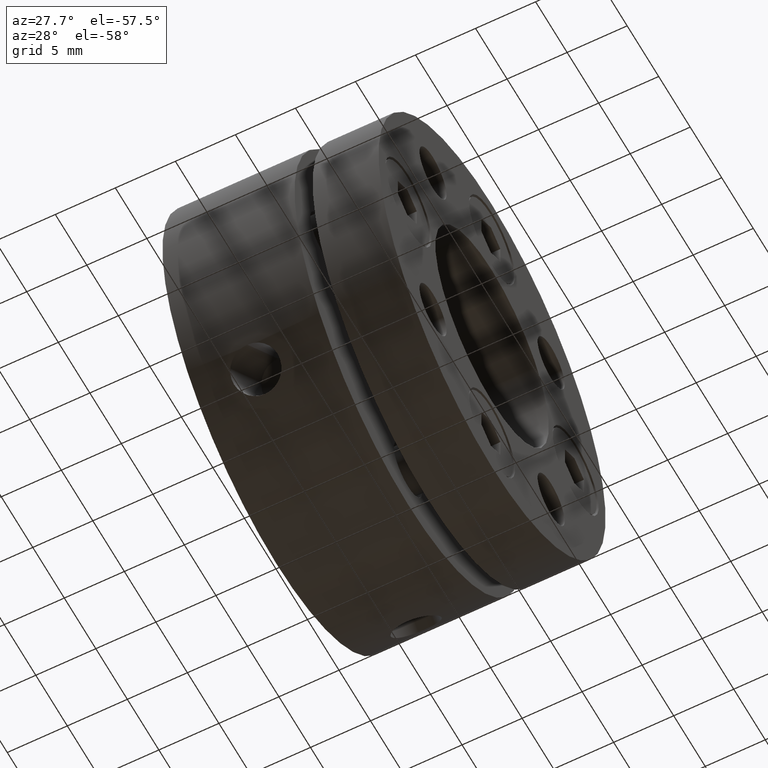
[diagram: clean part render]
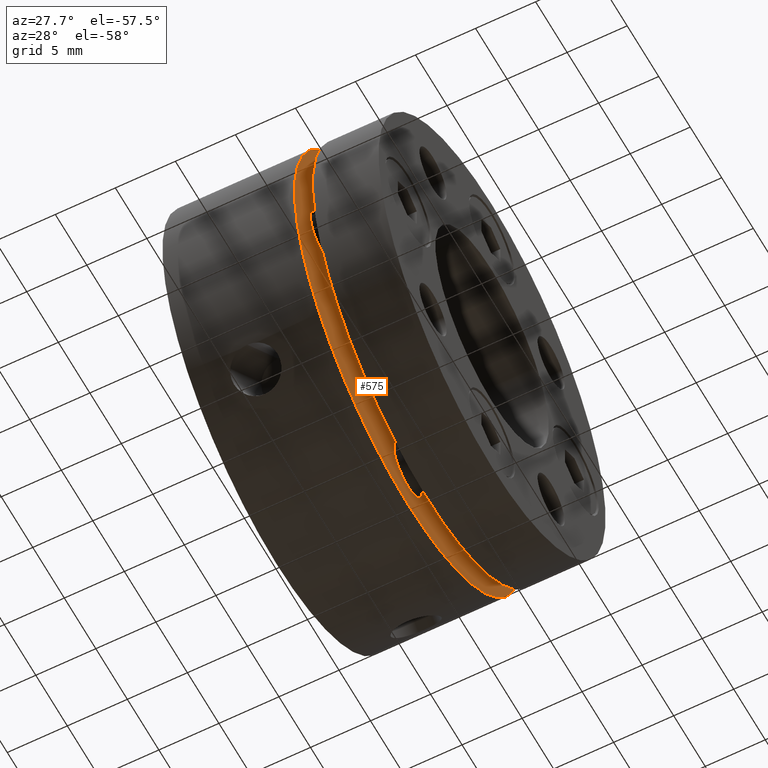
[diagram: same view with one face highlighted and labeled with its STEP entity id]
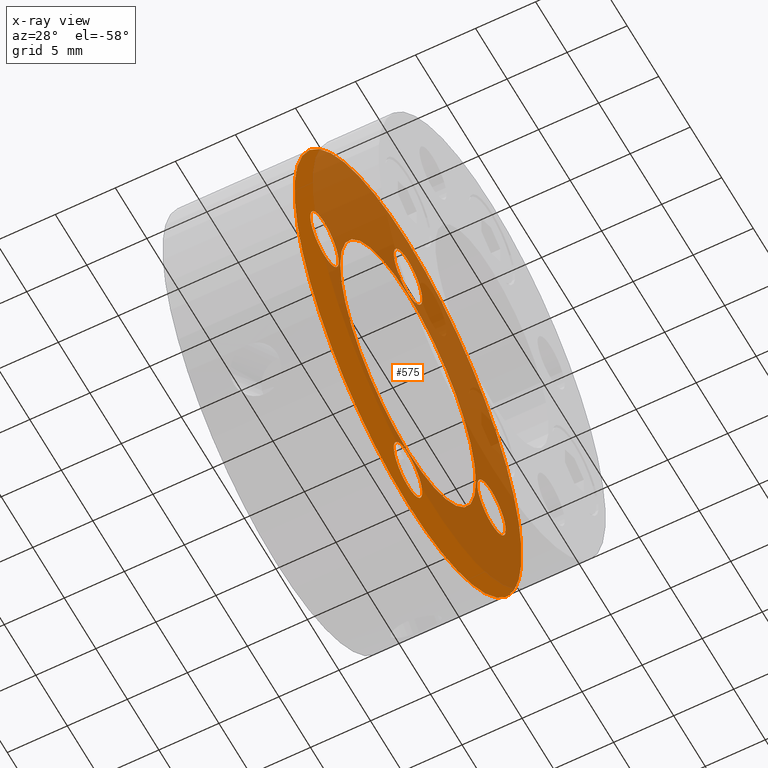
[diagram: x-ray of the same camera — body ghosted, the highlighted face saturated]
A machine part, auxiliary view. The second image highlights one B-rep face of the part: STEP entity #575.
The next image is the same camera in x-ray: the body ghosted, the highlighted face saturated — about 66% of this face is hidden behind the body in this view.
In plain terms, the highlighted planar face has unit normal (-1, 0, 0).
Its self-contained STEP definition (entity closure, byte-faithful):
#407 = DIRECTION ( 'NONE',  ( -1.000000000000000000, 0.0000000000000000000, 0.0000000000000000000 ) ) ;
#409 = PLANE ( 'NONE',  #1779 ) ;
#411 = CARTESIAN_POINT ( 'NONE',  ( 11.00000000000000000, 14.37500000000000000, 0.0000000000000000000 ) ) ;
#413 = DIRECTION ( 'NONE',  ( 0.0000000000000000000, 0.0000000000000000000, 1.000000000000000000 ) ) ;
#575 = ADVANCED_FACE ( 'NONE', ( #1556, #1564, #1560, #1558, #1562, #1565 ), #409, .F. ) ;
#603 = EDGE_CURVE ( 'NONE', #1282, #1361, #1613, .T. ) ;
#767 = EDGE_LOOP ( 'NONE', ( #1162, #1163 ) ) ;
#771 = EDGE_LOOP ( 'NONE', ( #1160, #1161 ) ) ;
#779 = EDGE_LOOP ( 'NONE', ( #1166, #1167 ) ) ;
#780 = EDGE_LOOP ( 'NONE', ( #1164, #1165 ) ) ;
#785 = EDGE_LOOP ( 'NONE', ( #1168, #1169 ) ) ;
#786 = EDGE_LOOP ( 'NONE', ( #1170, #1171 ) ) ;
#996 = EDGE_CURVE ( 'NONE', #1364, #1347, #2502, .T. ) ;
#1000 = EDGE_CURVE ( 'NONE', #1345, #1350, #2507, .T. ) ;
#1004 = EDGE_CURVE ( 'NONE', #1351, #1368, #2513, .T. ) ;
#1008 = EDGE_CURVE ( 'NONE', #1360, #1354, #2519, .T. ) ;
#1012 = EDGE_CURVE ( 'NONE', #1362, #1372, #2525, .T. ) ;
#1062 = EDGE_CURVE ( 'NONE', #1372, #1362, #2588, .T. ) ;
#1063 = EDGE_CURVE ( 'NONE', #1354, #1360, #2589, .T. ) ;
#1064 = EDGE_CURVE ( 'NONE', #1368, #1351, #2590, .T. ) ;
#1065 = EDGE_CURVE ( 'NONE', #1350, #1345, #2591, .T. ) ;
#1066 = EDGE_CURVE ( 'NONE', #1347, #1364, #2592, .T. ) ;
#1076 = EDGE_CURVE ( 'NONE', #1361, #1282, #2559, .T. ) ;
#1160 = ORIENTED_EDGE ( 'NONE', *, *, #1066, .F. ) ;
#1161 = ORIENTED_EDGE ( 'NONE', *, *, #996, .F. ) ;
#1162 = ORIENTED_EDGE ( 'NONE', *, *, #1065, .F. ) ;
#1163 = ORIENTED_EDGE ( 'NONE', *, *, #1000, .F. ) ;
#1164 = ORIENTED_EDGE ( 'NONE', *, *, #1064, .F. ) ;
#1165 = ORIENTED_EDGE ( 'NONE', *, *, #1004, .F. ) ;
#1166 = ORIENTED_EDGE ( 'NONE', *, *, #1063, .F. ) ;
#1167 = ORIENTED_EDGE ( 'NONE', *, *, #1008, .F. ) ;
#1168 = ORIENTED_EDGE ( 'NONE', *, *, #1062, .F. ) ;
#1169 = ORIENTED_EDGE ( 'NONE', *, *, #1012, .F. ) ;
#1170 = ORIENTED_EDGE ( 'NONE', *, *, #1076, .F. ) ;
#1171 = ORIENTED_EDGE ( 'NONE', *, *, #603, .F. ) ;
#1282 = VERTEX_POINT ( 'NONE', #3137 ) ;
#1345 = VERTEX_POINT ( 'NONE', #3198 ) ;
#1347 = VERTEX_POINT ( 'NONE', #3200 ) ;
#1350 = VERTEX_POINT ( 'NONE', #3203 ) ;
#1351 = VERTEX_POINT ( 'NONE', #3204 ) ;
#1354 = VERTEX_POINT ( 'NONE', #3207 ) ;
#1360 = VERTEX_POINT ( 'NONE', #3213 ) ;
#1361 = VERTEX_POINT ( 'NONE', #3214 ) ;
#1362 = VERTEX_POINT ( 'NONE', #3215 ) ;
#1364 = VERTEX_POINT ( 'NONE', #3217 ) ;
#1368 = VERTEX_POINT ( 'NONE', #3221 ) ;
#1372 = VERTEX_POINT ( 'NONE', #3225 ) ;
#1556 = FACE_BOUND ( 'NONE', #771, .T. ) ;
#1558 = FACE_BOUND ( 'NONE', #779, .T. ) ;
#1560 = FACE_BOUND ( 'NONE', #780, .T. ) ;
#1562 = FACE_BOUND ( 'NONE', #785, .T. ) ;
#1564 = FACE_BOUND ( 'NONE', #767, .T. ) ;
#1565 = FACE_OUTER_BOUND ( 'NONE', #786, .T. ) ;
#1613 = CIRCLE ( 'NONE', #1814, 18.00000000000000400 ) ;
#1779 = AXIS2_PLACEMENT_3D ( 'NONE', #411, #407, #413 ) ;
#1814 = AXIS2_PLACEMENT_3D ( 'NONE', #1973, #1974, #1975 ) ;
#1859 = AXIS2_PLACEMENT_3D ( 'NONE', #2329, #2330, #2331 ) ;
#1861 = AXIS2_PLACEMENT_3D ( 'NONE', #2339, #2340, #2341 ) ;
#1863 = AXIS2_PLACEMENT_3D ( 'NONE', #2349, #2350, #2351 ) ;
#1865 = AXIS2_PLACEMENT_3D ( 'NONE', #2359, #2360, #2361 ) ;
#1867 = AXIS2_PLACEMENT_3D ( 'NONE', #2369, #2370, #2371 ) ;
#1906 = AXIS2_PLACEMENT_3D ( 'NONE', #2937, #2938, #2939 ) ;
#1907 = AXIS2_PLACEMENT_3D ( 'NONE', #2940, #2941, #2942 ) ;
#1908 = AXIS2_PLACEMENT_3D ( 'NONE', #2943, #2944, #2945 ) ;
#1909 = AXIS2_PLACEMENT_3D ( 'NONE', #2946, #2947, #2948 ) ;
#1910 = AXIS2_PLACEMENT_3D ( 'NONE', #2949, #2950, #2951 ) ;
#1920 = AXIS2_PLACEMENT_3D ( 'NONE', #2982, #2983, #2984 ) ;
#1973 = CARTESIAN_POINT ( 'NONE',  ( 11.00000000000000000, 0.0000000000000000000, 0.0000000000000000000 ) ) ;
#1974 = DIRECTION ( 'NONE',  ( -1.000000000000000000, -0.0000000000000000000, -0.0000000000000000000 ) ) ;
#1975 = DIRECTION ( 'NONE',  ( 0.0000000000000000000, 0.0000000000000000000, -1.000000000000000000 ) ) ;
#2329 = CARTESIAN_POINT ( 'NONE',  ( 11.00000000000000000, 0.0000000000000000000, 0.0000000000000000000 ) ) ;
#2330 = DIRECTION ( 'NONE',  ( 1.000000000000000000, -0.0000000000000000000, -0.0000000000000000000 ) ) ;
#2331 = DIRECTION ( 'NONE',  ( 0.0000000000000000000, 0.0000000000000000000, 1.000000000000000000 ) ) ;
#2339 = CARTESIAN_POINT ( 'NONE',  ( 11.00000000000000000, 0.0000000000000000000, 13.25000000000000900 ) ) ;
#2340 = DIRECTION ( 'NONE',  ( 1.000000000000000000, 0.0000000000000000000, 0.0000000000000000000 ) ) ;
#2341 = DIRECTION ( 'NONE',  ( 0.0000000000000000000, 0.0000000000000000000, -1.000000000000000000 ) ) ;
#2349 = CARTESIAN_POINT ( 'NONE',  ( 11.00000000000000000, -13.25000000000000900, 8.113284999999999900E-016 ) ) ;
#2350 = DIRECTION ( 'NONE',  ( 1.000000000000000000, 0.0000000000000000000, 0.0000000000000000000 ) ) ;
#2351 = DIRECTION ( 'NONE',  ( 0.0000000000000000000, 0.0000000000000000000, -1.000000000000000000 ) ) ;
#2359 = CARTESIAN_POINT ( 'NONE',  ( 11.00000000000000000, -1.622657000000000000E-015, -13.25000000000000900 ) ) ;
#2360 = DIRECTION ( 'NONE',  ( 1.000000000000000000, 0.0000000000000000000, 0.0000000000000000000 ) ) ;
#2361 = DIRECTION ( 'NONE',  ( 0.0000000000000000000, 0.0000000000000000000, -1.000000000000000000 ) ) ;
#2369 = CARTESIAN_POINT ( 'NONE',  ( 11.00000000000000000, 13.25000000000000900, -2.433985999999999900E-015 ) ) ;
#2370 = DIRECTION ( 'NONE',  ( 1.000000000000000000, 0.0000000000000000000, 0.0000000000000000000 ) ) ;
#2371 = DIRECTION ( 'NONE',  ( 0.0000000000000000000, 0.0000000000000000000, -1.000000000000000000 ) ) ;
#2502 = CIRCLE ( 'NONE', #1859, 10.75000000000000000 ) ;
#2507 = CIRCLE ( 'NONE', #1861, 2.250000000000000400 ) ;
#2513 = CIRCLE ( 'NONE', #1863, 2.250000000000000400 ) ;
#2519 = CIRCLE ( 'NONE', #1865, 2.250000000000000400 ) ;
#2525 = CIRCLE ( 'NONE', #1867, 2.250000000000000400 ) ;
#2559 = CIRCLE ( 'NONE', #1920, 18.00000000000000400 ) ;
#2588 = CIRCLE ( 'NONE', #1906, 2.250000000000000400 ) ;
#2589 = CIRCLE ( 'NONE', #1907, 2.250000000000000400 ) ;
#2590 = CIRCLE ( 'NONE', #1908, 2.250000000000000400 ) ;
#2591 = CIRCLE ( 'NONE', #1909, 2.250000000000000400 ) ;
#2592 = CIRCLE ( 'NONE', #1910, 10.75000000000000000 ) ;
#2937 = CARTESIAN_POINT ( 'NONE',  ( 11.00000000000000000, 13.25000000000000900, -2.433985999999999900E-015 ) ) ;
#2938 = DIRECTION ( 'NONE',  ( 1.000000000000000000, 0.0000000000000000000, 0.0000000000000000000 ) ) ;
#2939 = DIRECTION ( 'NONE',  ( 0.0000000000000000000, 0.0000000000000000000, -1.000000000000000000 ) ) ;
#2940 = CARTESIAN_POINT ( 'NONE',  ( 11.00000000000000000, -1.622657000000000000E-015, -13.25000000000000900 ) ) ;
#2941 = DIRECTION ( 'NONE',  ( 1.000000000000000000, 0.0000000000000000000, 0.0000000000000000000 ) ) ;
#2942 = DIRECTION ( 'NONE',  ( 0.0000000000000000000, 0.0000000000000000000, -1.000000000000000000 ) ) ;
#2943 = CARTESIAN_POINT ( 'NONE',  ( 11.00000000000000000, -13.25000000000000900, 8.113284999999999900E-016 ) ) ;
#2944 = DIRECTION ( 'NONE',  ( 1.000000000000000000, 0.0000000000000000000, 0.0000000000000000000 ) ) ;
#2945 = DIRECTION ( 'NONE',  ( 0.0000000000000000000, 0.0000000000000000000, -1.000000000000000000 ) ) ;
#2946 = CARTESIAN_POINT ( 'NONE',  ( 11.00000000000000000, 0.0000000000000000000, 13.25000000000000900 ) ) ;
#2947 = DIRECTION ( 'NONE',  ( 1.000000000000000000, 0.0000000000000000000, 0.0000000000000000000 ) ) ;
#2948 = DIRECTION ( 'NONE',  ( 0.0000000000000000000, 0.0000000000000000000, -1.000000000000000000 ) ) ;
#2949 = CARTESIAN_POINT ( 'NONE',  ( 11.00000000000000000, 0.0000000000000000000, 0.0000000000000000000 ) ) ;
#2950 = DIRECTION ( 'NONE',  ( 1.000000000000000000, -0.0000000000000000000, -0.0000000000000000000 ) ) ;
#2951 = DIRECTION ( 'NONE',  ( 0.0000000000000000000, 0.0000000000000000000, 1.000000000000000000 ) ) ;
#2982 = CARTESIAN_POINT ( 'NONE',  ( 11.00000000000000000, 0.0000000000000000000, 0.0000000000000000000 ) ) ;
#2983 = DIRECTION ( 'NONE',  ( -1.000000000000000000, -0.0000000000000000000, -0.0000000000000000000 ) ) ;
#2984 = DIRECTION ( 'NONE',  ( 0.0000000000000000000, 0.0000000000000000000, -1.000000000000000000 ) ) ;
#3137 = CARTESIAN_POINT ( 'NONE',  ( 11.00000000000000000, 2.204364238465235800E-015, 18.00000000000000400 ) ) ;
#3198 = CARTESIAN_POINT ( 'NONE',  ( 11.00000000000000000, 2.755455298081544800E-016, 15.50000000000000900 ) ) ;
#3200 = CARTESIAN_POINT ( 'NONE',  ( 11.00000000000000000, 0.0000000000000000000, 10.75000000000000000 ) ) ;
#3203 = CARTESIAN_POINT ( 'NONE',  ( 11.00000000000000000, 0.0000000000000000000, 11.00000000000000900 ) ) ;
#3204 = CARTESIAN_POINT ( 'NONE',  ( 11.00000000000000000, -13.25000000000000900, 2.250000000000001300 ) ) ;
#3207 = CARTESIAN_POINT ( 'NONE',  ( 11.00000000000000000, -1.622657000000000000E-015, -15.50000000000000900 ) ) ;
#3213 = CARTESIAN_POINT ( 'NONE',  ( 11.00000000000000000, -1.347111470191845700E-015, -11.00000000000000900 ) ) ;
#3214 = CARTESIAN_POINT ( 'NONE',  ( 11.00000000000000000, 0.0000000000000000000, -18.00000000000000400 ) ) ;
#3215 = CARTESIAN_POINT ( 'NONE',  ( 11.00000000000000000, 13.25000000000000900, 2.249999999999997800 ) ) ;
#3217 = CARTESIAN_POINT ( 'NONE',  ( 11.00000000000000000, 1.316495309083404800E-015, -10.75000000000000000 ) ) ;
#3221 = CARTESIAN_POINT ( 'NONE',  ( 11.00000000000000000, -13.25000000000000900, -2.249999999999999600 ) ) ;
#3225 = CARTESIAN_POINT ( 'NONE',  ( 11.00000000000000000, 13.25000000000000900, -2.250000000000002700 ) ) ;